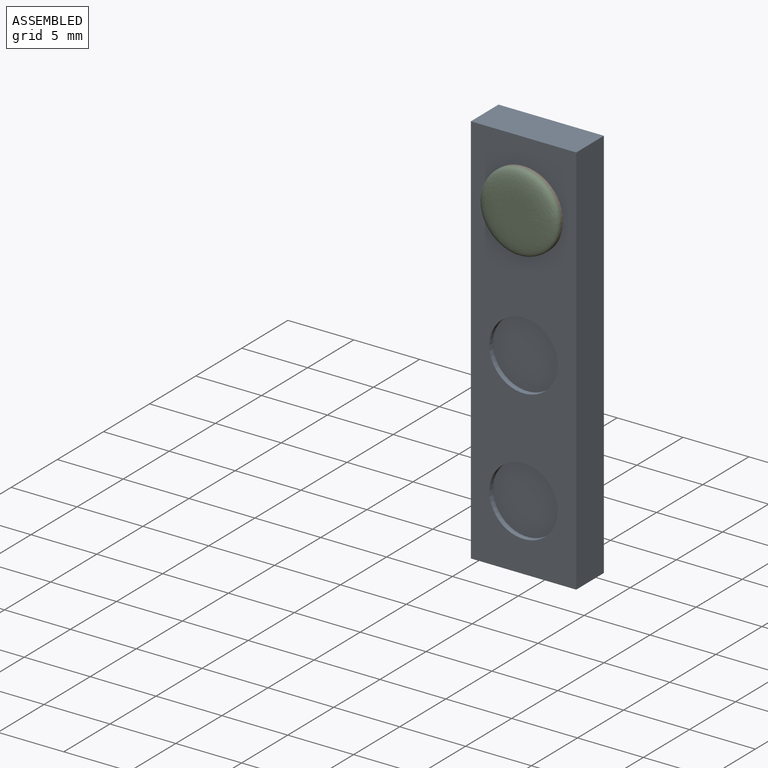
[diagram: assembled view]
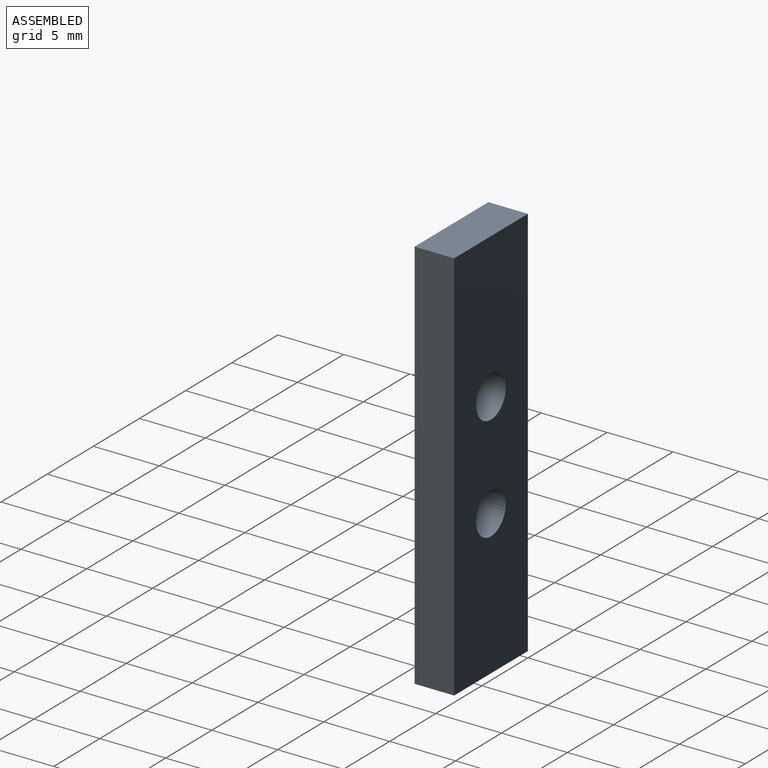
[diagram: assembled view, second angle]
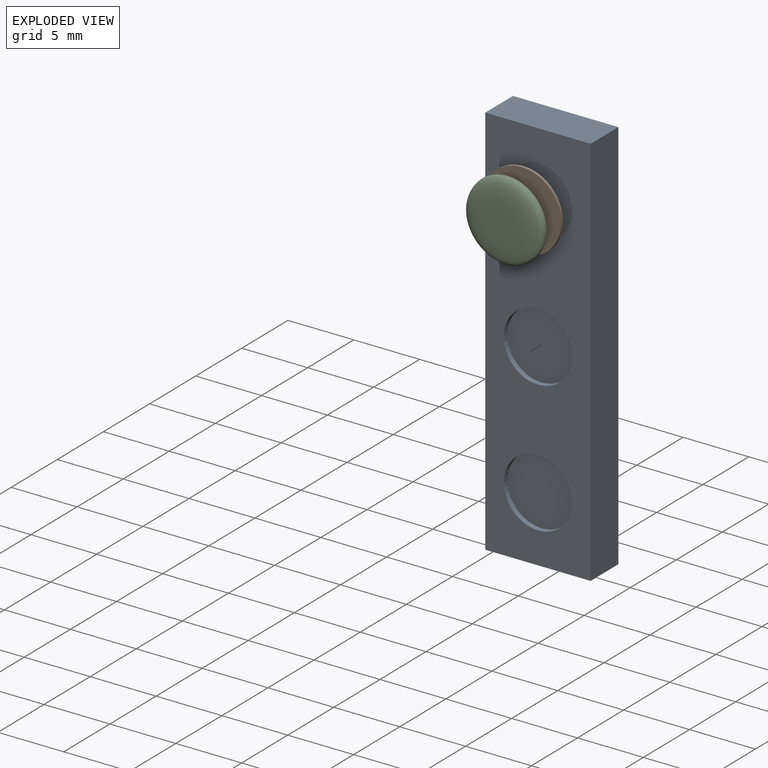
[diagram: exploded view]
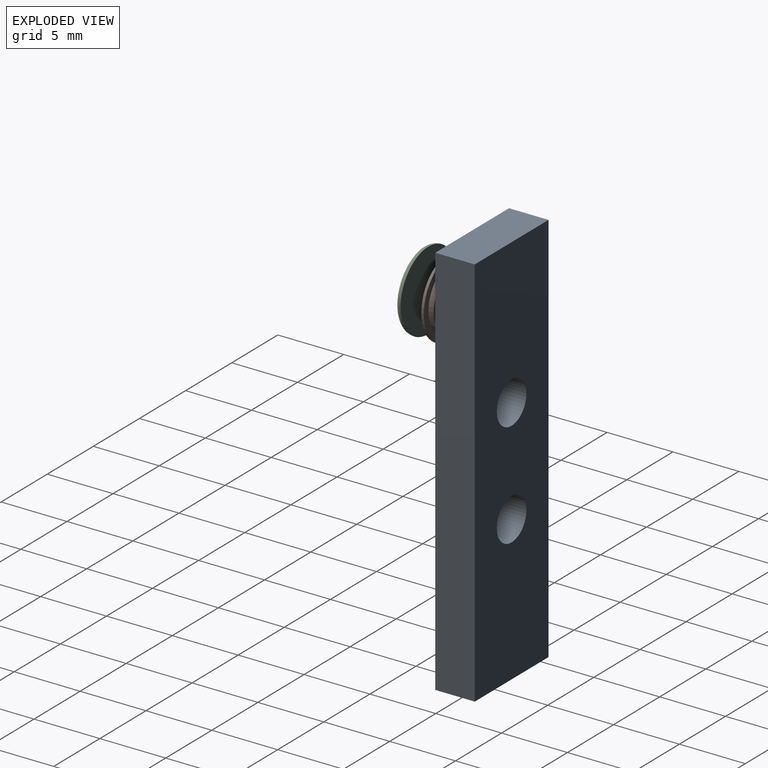
[diagram: exploded view, second angle]
ASSEMBLY  parts=3 mates=2
PART A: 16 faces, bbox 8x30x3 mm
  f0: plane 8x3mm, normal (0,1,0), area 24mm2, adj f1,f3,f4,f5
  f1: plane 30x3mm, normal (-1,0,0), area 90mm2, adj f0,f2,f4,f5
  f2: plane 8x3mm, normal (0,-1,0), area 24mm2, adj f1,f3,f4,f5
  f3: plane 30x3mm, normal (1,0,0), area 90mm2, adj f0,f2,f4,f5
  f4: plane 30x8mm, normal (0,0,1), area 176.3mm2, adj f0,f1,f2,f3,f10,f12,f14
  f5: plane 30x8mm, normal (0,0,-1), area 223.9mm2, adj f0,f1,f2,f3,f6,f8
  f6: cylinder r=1.6mm len=3.2mm, axis (0,0,-1), area 24.1mm2, adj f5,f7
  f7: plane 3.2x3.2mm, normal (0,0,-1), area 8mm2, adj f6
  f8: cylinder r=1.6mm len=3.2mm, axis (0,0,-1), area 24.1mm2, adj f5,f9
  f9: plane 3.2x3.2mm, normal (0,0,-1), area 8mm2, adj f8
  f10: cylinder r=2.6mm len=5.2mm, axis (0,0,1), area 6.5mm2, adj f4,f11
  f11: plane 5.2x5.2mm, normal (0,0,1), area 21.2mm2, adj f10
  f12: cylinder r=2.6mm len=5.2mm, axis (0,0,1), area 6.5mm2, adj f4,f13
  f13: plane 5.2x5.2mm, normal (0,0,1), area 21.2mm2, adj f12
  f14: cylinder r=2.6mm len=5.2mm, axis (0,0,1), area 6.5mm2, adj f4,f15
  f15: plane 5.2x5.2mm, normal (0,0,1), area 21.2mm2, adj f14
PART B: 5 faces, bbox 6x6x0.6 mm
  f0: cylinder r=2.5mm len=5mm, axis (0,0,-1), area 6.3mm2, adj f1,f4
  f1: plane 5x5mm, normal (0,0,-1), area 19.6mm2, adj f0
  f2: cylinder r=3mm len=6mm, axis (0,0,-1), area 3.8mm2, adj f3,f4
  f3: plane 6x6mm, normal (0,0,1), area 28.3mm2, adj f2
  f4: plane 6x6mm, normal (0,0,-1), area 8.6mm2, adj f0,f2
PART C: 3 faces, bbox 6x6x0.6 mm
  f0: plane 2x2mm, normal (0,0,1), area 3.1mm2, adj f2
  f1: plane 6x6mm, normal (0,0,-1), area 28.3mm2, adj f2
  f2: bspline ~6x6mm, area 30.3mm2, adj f0,f1
PLACE A rot(axis=(0,-0.71,0.71),180deg) t=(4,0,-15)mm
PLACE B rot(axis=(1,0,0),90deg) t=(4,-2.6,-5)mm
PLACE C rot(axis=(1,0,0),90deg) t=(4,-2.6,-5)mm
MATE fastened C.f1 <-> B.f2  axis (0,1,0) through (4,-3.2,-5)mm
MATE slider B.f0 <-> A.f14  axis (0,1,0) through (4,-2.6,-5)mm
